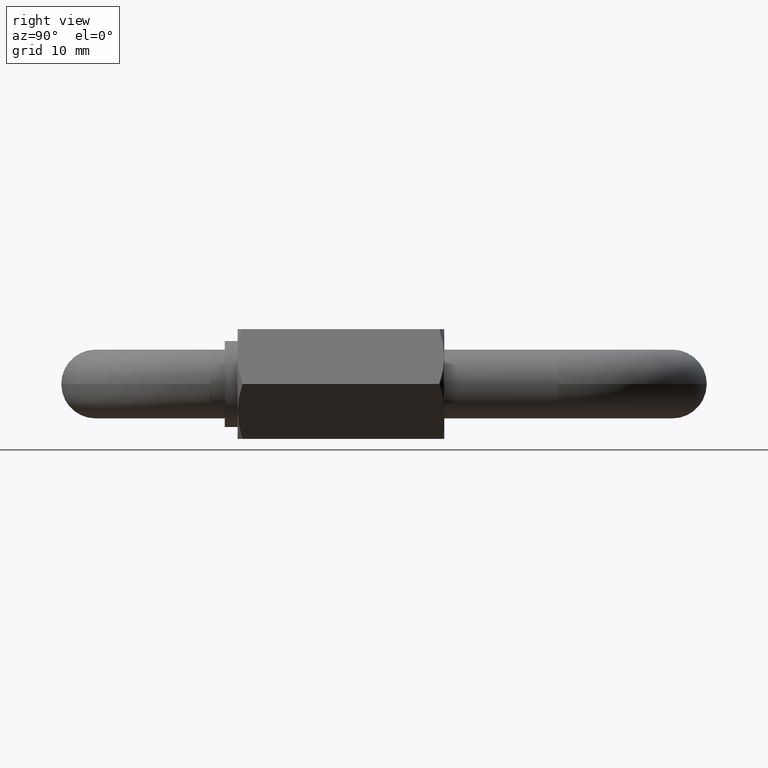
[diagram: clean part render]
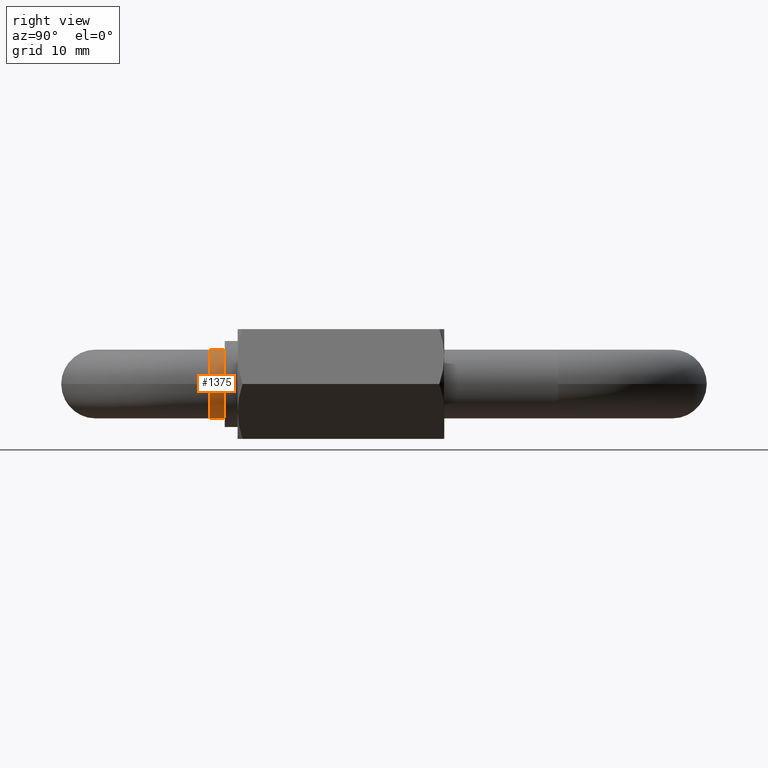
[diagram: same view with one face highlighted and labeled with its STEP entity id]
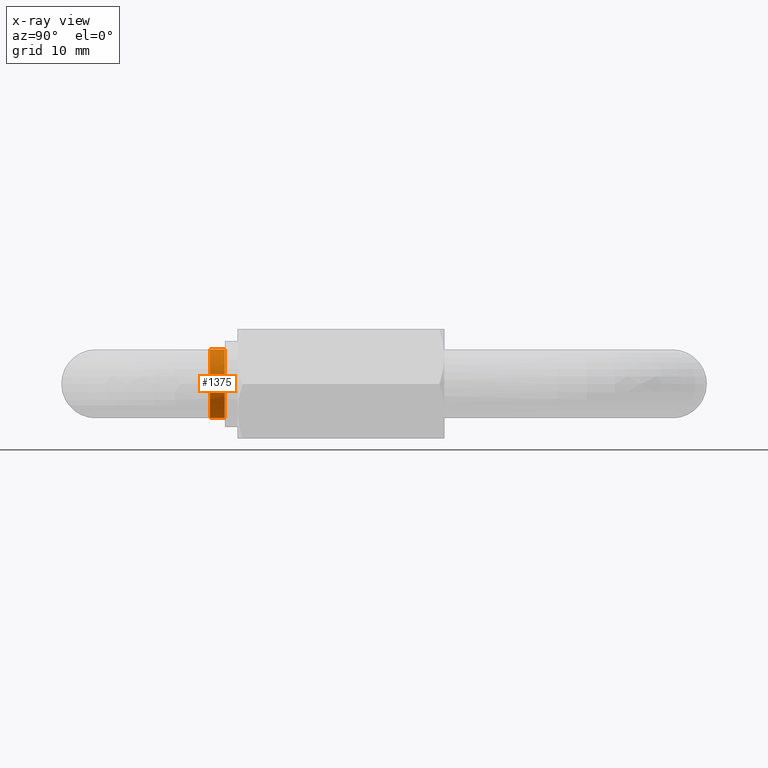
[diagram: x-ray of the same camera — body ghosted, the highlighted face saturated]
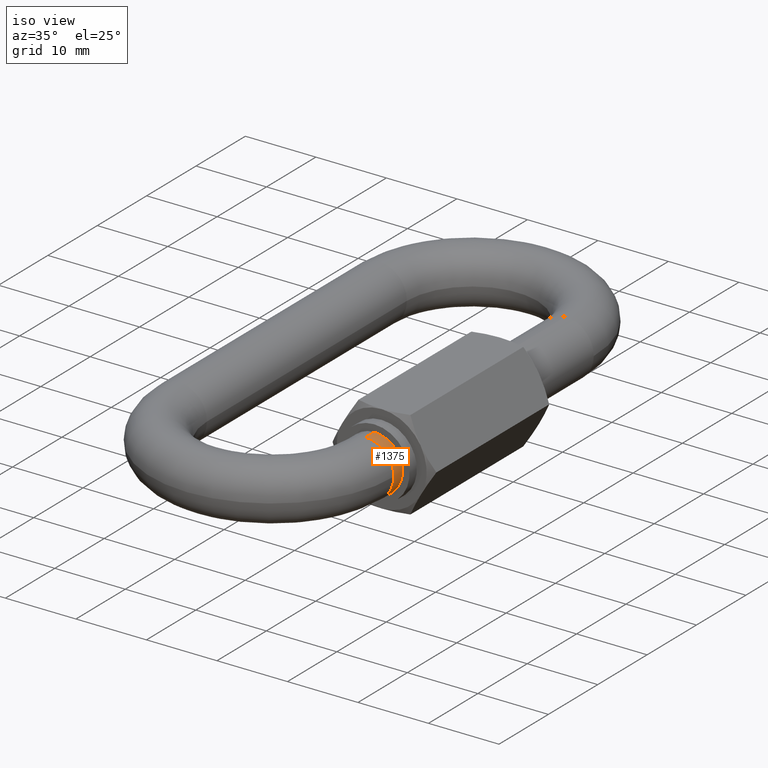
[diagram: same view with one face highlighted and labeled with its STEP entity id]
A machine part, right view. The second image highlights one B-rep face of the part: STEP entity #1375.
The next image is the same camera in x-ray: the body ghosted, the highlighted face saturated — about 0% of this face is hidden behind the body in this view.
A second angle (iso view) of the same face is appended — the face is thin or edge-on in the first view.
In plain terms, the highlighted cylindrical surface (edge-blend (fillet) strip) has radius 4 mm, axis along (0, 1, 0).
Its self-contained STEP definition (entity closure, byte-faithful):
#60 = VECTOR ( 'NONE', #1649, 1000.000000000000000 ) ;
#79 = CARTESIAN_POINT ( 'NONE',  ( 13.25000000000000900, -20.24999999999961300, 3.999999999999997300 ) ) ;
#111 = DIRECTION ( 'NONE',  ( -2.906495849027466200E-014, 1.000000000000000000, 0.0000000000000000000 ) ) ;
#175 = EDGE_CURVE ( 'NONE', #542, #2003, #1574, .T. ) ;
#207 = ORIENTED_EDGE ( 'NONE', *, *, #1902, .T. ) ;
#226 = DIRECTION ( 'NONE',  ( 0.0000000000000000000, 1.000000000000000000, 0.0000000000000000000 ) ) ;
#227 = CARTESIAN_POINT ( 'NONE',  ( 17.25000000000000700, -20.24999999999949600, 0.0000000000000000000 ) ) ;
#253 = EDGE_LOOP ( 'NONE', ( #1251, #268, #286, #207, #1357 ) ) ;
#261 = FACE_OUTER_BOUND ( 'NONE', #253, .T. ) ;
#268 = ORIENTED_EDGE ( 'NONE', *, *, #175, .T. ) ;
#286 = ORIENTED_EDGE ( 'NONE', *, *, #862, .T. ) ;
#375 = DIRECTION ( 'NONE',  ( 0.0000000000000000000, 0.0000000000000000000, 1.000000000000000000 ) ) ;
#470 = DIRECTION ( 'NONE',  ( -2.906495849027466200E-014, 1.000000000000000000, 0.0000000000000000000 ) ) ;
#542 = VERTEX_POINT ( 'NONE', #227 ) ;
#547 = CARTESIAN_POINT ( 'NONE',  ( 13.25000000000000900, -20.24999999999961300, 0.0000000000000000000 ) ) ;
#557 = AXIS2_PLACEMENT_3D ( 'NONE', #1377, #111, #742 ) ;
#607 = VERTEX_POINT ( 'NONE', #79 ) ;
#726 = CARTESIAN_POINT ( 'NONE',  ( 13.25000000000000900, -18.50000000000001100, 3.999999999999997300 ) ) ;
#742 = DIRECTION ( 'NONE',  ( 0.0000000000000000000, 0.0000000000000000000, 1.000000000000000000 ) ) ;
#750 = DIRECTION ( 'NONE',  ( 0.0000000000000000000, 0.0000000000000000000, 1.000000000000000000 ) ) ;
#805 = EDGE_CURVE ( 'NONE', #607, #981, #880, .T. ) ;
#822 = CARTESIAN_POINT ( 'NONE',  ( 13.25000000000000900, -20.24999999999961300, 3.999999999999997300 ) ) ;
#862 = EDGE_CURVE ( 'NONE', #2003, #912, #1307, .T. ) ;
#880 = LINE ( 'NONE', #822, #60 ) ;
#883 = AXIS2_PLACEMENT_3D ( 'NONE', #911, #470, #750 ) ;
#911 = CARTESIAN_POINT ( 'NONE',  ( 13.25000000000000900, -20.24999999999961300, 0.0000000000000000000 ) ) ;
#912 = VERTEX_POINT ( 'NONE', #1320 ) ;
#981 = VERTEX_POINT ( 'NONE', #726 ) ;
#1096 = AXIS2_PLACEMENT_3D ( 'NONE', #1919, #1788, #375 ) ;
#1125 = AXIS2_PLACEMENT_3D ( 'NONE', #547, #226, #1314 ) ;
#1138 = CARTESIAN_POINT ( 'NONE',  ( 13.25000000000000900, -20.24999999999961300, -3.999999999999997300 ) ) ;
#1251 = ORIENTED_EDGE ( 'NONE', *, *, #1654, .T. ) ;
#1307 = LINE ( 'NONE', #1465, #1676 ) ;
#1314 = DIRECTION ( 'NONE',  ( 0.0000000000000000000, 0.0000000000000000000, 1.000000000000000000 ) ) ;
#1320 = CARTESIAN_POINT ( 'NONE',  ( 13.25000000000000900, -18.50000000000001100, -3.999999999999997300 ) ) ;
#1352 = CIRCLE ( 'NONE', #1096, 3.999999999999997300 ) ;
#1357 = ORIENTED_EDGE ( 'NONE', *, *, #805, .F. ) ;
#1375 = ADVANCED_FACE ( 'NONE', ( #261 ), #1904, .T. ) ;
#1377 = CARTESIAN_POINT ( 'NONE',  ( 13.25000000000000900, -20.24999999999961300, 0.0000000000000000000 ) ) ;
#1465 = CARTESIAN_POINT ( 'NONE',  ( 13.25000000000000900, -20.24999999999961300, -3.999999999999997300 ) ) ;
#1574 = CIRCLE ( 'NONE', #557, 3.999999999999997300 ) ;
#1619 = CIRCLE ( 'NONE', #883, 3.999999999999997300 ) ;
#1649 = DIRECTION ( 'NONE',  ( 0.0000000000000000000, 1.000000000000000000, 0.0000000000000000000 ) ) ;
#1654 = EDGE_CURVE ( 'NONE', #607, #542, #1619, .T. ) ;
#1676 = VECTOR ( 'NONE', #1989, 1000.000000000000000 ) ;
#1788 = DIRECTION ( 'NONE',  ( -0.0000000000000000000, -1.000000000000000000, -0.0000000000000000000 ) ) ;
#1902 = EDGE_CURVE ( 'NONE', #912, #981, #1352, .T. ) ;
#1904 = CYLINDRICAL_SURFACE ( 'NONE', #1125, 3.999999999999997300 ) ;
#1919 = CARTESIAN_POINT ( 'NONE',  ( 13.25000000000000900, -18.50000000000001100, 0.0000000000000000000 ) ) ;
#1989 = DIRECTION ( 'NONE',  ( 0.0000000000000000000, 1.000000000000000000, 0.0000000000000000000 ) ) ;
#2003 = VERTEX_POINT ( 'NONE', #1138 ) ;